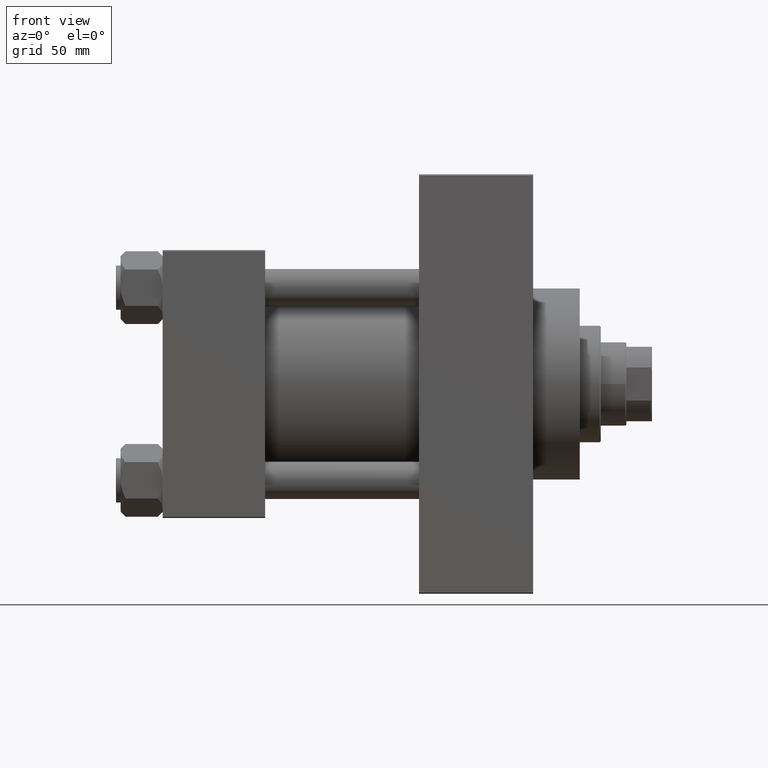
[diagram: clean part render]
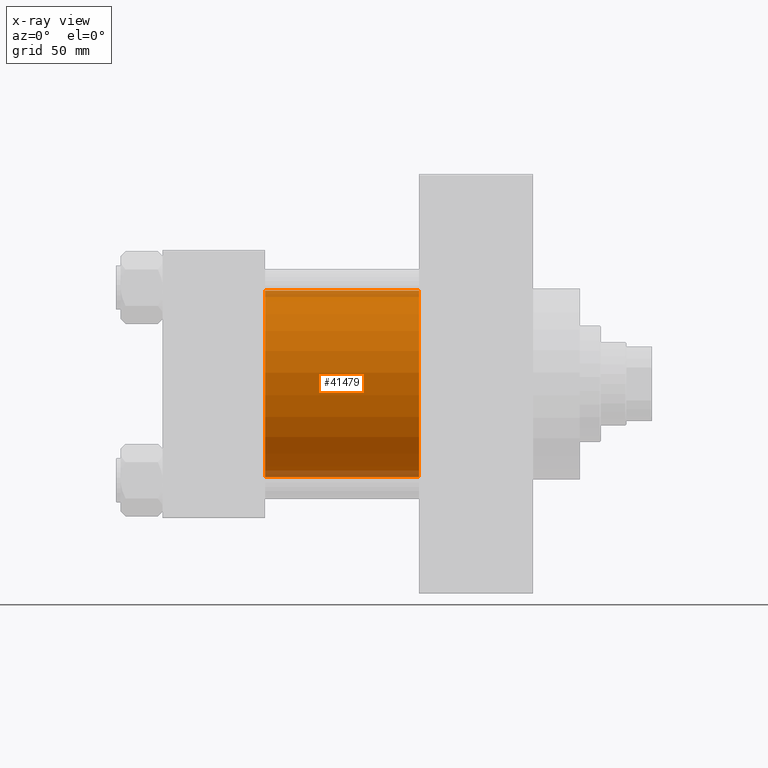
[diagram: x-ray — body ghosted, one internal face saturated and labeled with its STEP entity id]
A machine part, front view, then the same camera in x-ray: the body is ghosted and one INTERNAL B-rep face — a face not visible from any outside direction — is saturated and labeled: STEP entity #41479.
In plain terms, the highlighted cylindrical surface (partial cylindrical patch) has radius 40 mm, axis along (-1, -0, -0).
Its self-contained STEP definition (entity closure, byte-faithful):
#2575 = DIRECTION ( 'NONE',  ( -1.000000000000000000, -0.000000000000000000, -0.000000000000000000 ) ) ;
#3544 = CARTESIAN_POINT ( 'NONE',  ( 110.0000000000000000, -2.602085213965210642E-15, 40.00000000000000000 ) ) ;
#5342 = CIRCLE ( 'NONE', #14590, 40.00000000000000000 ) ;
#6190 = LINE ( 'NONE', #24507, #33066 ) ;
#9800 = ORIENTED_EDGE ( 'NONE', *, *, #43255, .T. ) ;
#10363 = VERTEX_POINT ( 'NONE', #29011 ) ;
#10848 = CYLINDRICAL_SURFACE ( 'NONE', #27651, 40.00000000000000000 ) ;
#11904 = DIRECTION ( 'NONE',  ( 0.000000000000000000, 0.000000000000000000, -1.000000000000000000 ) ) ;
#12329 = VERTEX_POINT ( 'NONE', #35974 ) ;
#12562 = DIRECTION ( 'NONE',  ( -1.000000000000000000, -0.000000000000000000, -0.000000000000000000 ) ) ;
#13545 = CIRCLE ( 'NONE', #28960, 40.00000000000000000 ) ;
#14590 = AXIS2_PLACEMENT_3D ( 'NONE', #42160, #34924, #19968 ) ;
#14912 = EDGE_CURVE ( 'NONE', #46090, #10363, #13545, .T. ) ;
#18829 = EDGE_LOOP ( 'NONE', ( #20426, #9800, #25506, #24930 ) ) ;
#18885 = DIRECTION ( 'NONE',  ( 1.000000000000000000, 0.000000000000000000, 0.000000000000000000 ) ) ;
#19258 = VERTEX_POINT ( 'NONE', #38731 ) ;
#19968 = DIRECTION ( 'NONE',  ( 0.000000000000000000, 0.000000000000000000, -1.000000000000000000 ) ) ;
#20426 = ORIENTED_EDGE ( 'NONE', *, *, #14912, .T. ) ;
#21688 = FACE_OUTER_BOUND ( 'NONE', #18829, .T. ) ;
#23158 = LINE ( 'NONE', #34028, #23830 ) ;
#23830 = VECTOR ( 'NONE', #12562, 1000.000000000000000 ) ;
#24507 = CARTESIAN_POINT ( 'NONE',  ( 110.0000000000000000, 2.296501982624201990E-15, -40.00000000000000000 ) ) ;
#24930 = ORIENTED_EDGE ( 'NONE', *, *, #43571, .F. ) ;
#25506 = ORIENTED_EDGE ( 'NONE', *, *, #26377, .F. ) ;
#26377 = EDGE_CURVE ( 'NONE', #12329, #19258, #5342, .T. ) ;
#27651 = AXIS2_PLACEMENT_3D ( 'NONE', #28912, #43630, #36162 ) ;
#28912 = CARTESIAN_POINT ( 'NONE',  ( 110.0000000000000000, -2.602085213965210642E-15, 0.000000000000000000 ) ) ;
#28960 = AXIS2_PLACEMENT_3D ( 'NONE', #45421, #18885, #11904 ) ;
#29011 = CARTESIAN_POINT ( 'NONE',  ( 110.0000000000000000, 2.296501982624201990E-15, -40.00000000000000000 ) ) ;
#33066 = VECTOR ( 'NONE', #2575, 1000.000000000000000 ) ;
#34028 = CARTESIAN_POINT ( 'NONE',  ( 110.0000000000000000, -2.602085213965210642E-15, 40.00000000000000000 ) ) ;
#34924 = DIRECTION ( 'NONE',  ( 1.000000000000000000, 0.000000000000000000, 0.000000000000000000 ) ) ;
#35974 = CARTESIAN_POINT ( 'NONE',  ( 44.00000000000000000, -2.602085213965210642E-15, 40.00000000000000000 ) ) ;
#36162 = DIRECTION ( 'NONE',  ( 0.000000000000000000, 0.000000000000000000, 1.000000000000000000 ) ) ;
#38731 = CARTESIAN_POINT ( 'NONE',  ( 44.00000000000000000, 2.296501982624201990E-15, -40.00000000000000000 ) ) ;
#41479 = ADVANCED_FACE ( 'NONE', ( #21688 ), #10848, .F. ) ;
#42160 = CARTESIAN_POINT ( 'NONE',  ( 44.00000000000000000, -2.602085213965210642E-15, 0.000000000000000000 ) ) ;
#43255 = EDGE_CURVE ( 'NONE', #10363, #19258, #6190, .T. ) ;
#43571 = EDGE_CURVE ( 'NONE', #46090, #12329, #23158, .T. ) ;
#43630 = DIRECTION ( 'NONE',  ( -1.000000000000000000, -0.000000000000000000, -0.000000000000000000 ) ) ;
#45421 = CARTESIAN_POINT ( 'NONE',  ( 110.0000000000000000, -2.602085213965210642E-15, 0.000000000000000000 ) ) ;
#46090 = VERTEX_POINT ( 'NONE', #3544 ) ;